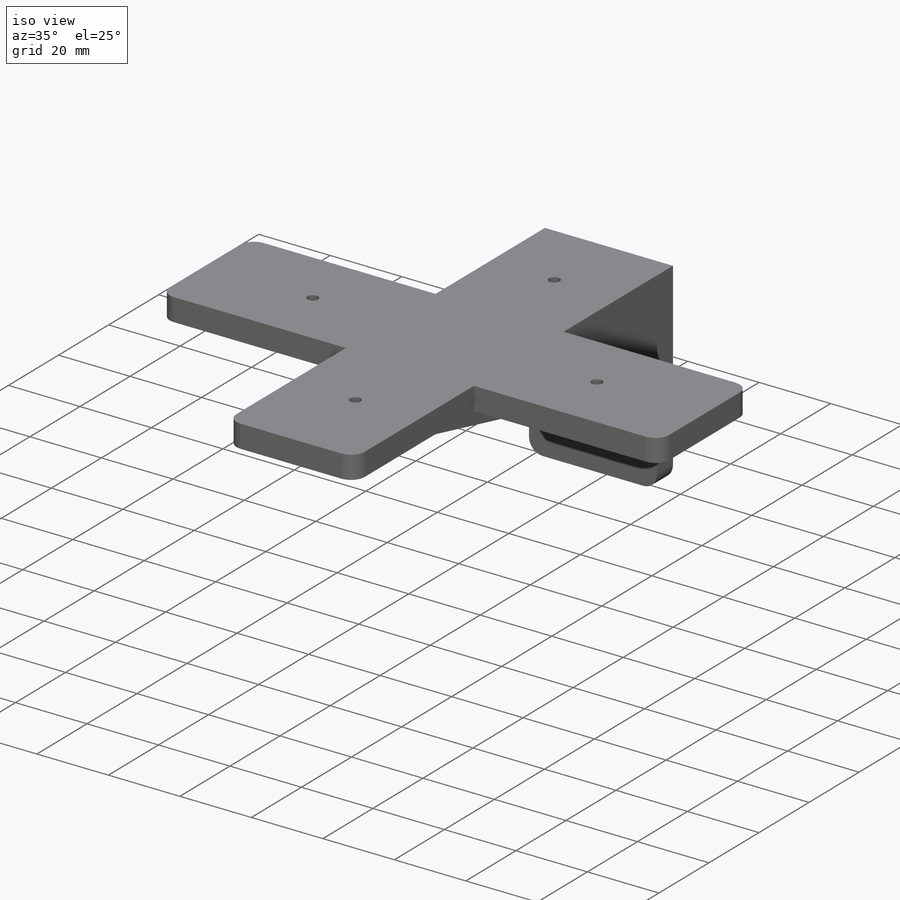
[diagram: iso view]
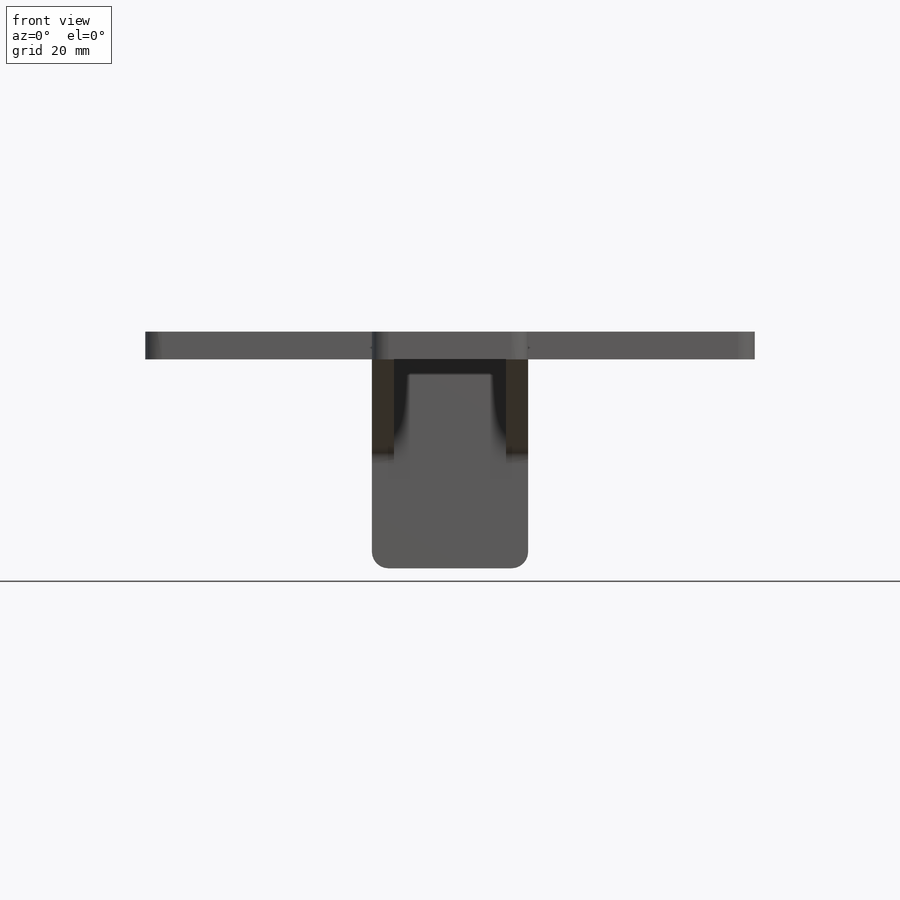
[diagram: front view]
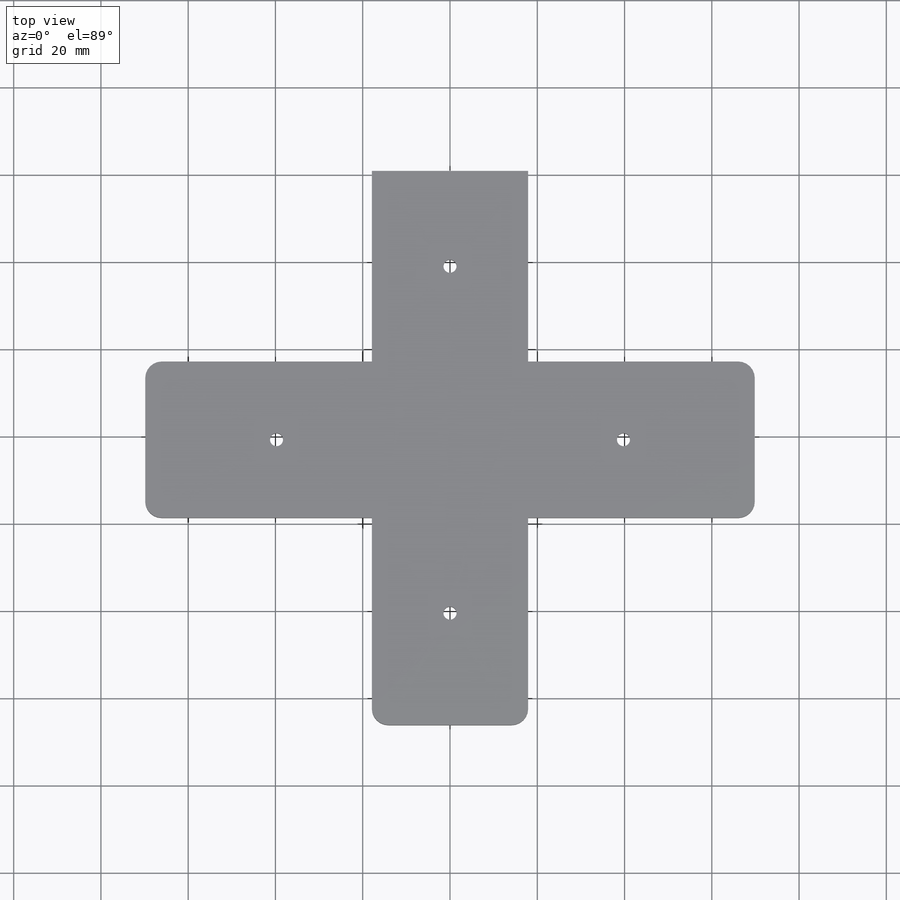
[diagram: top view]
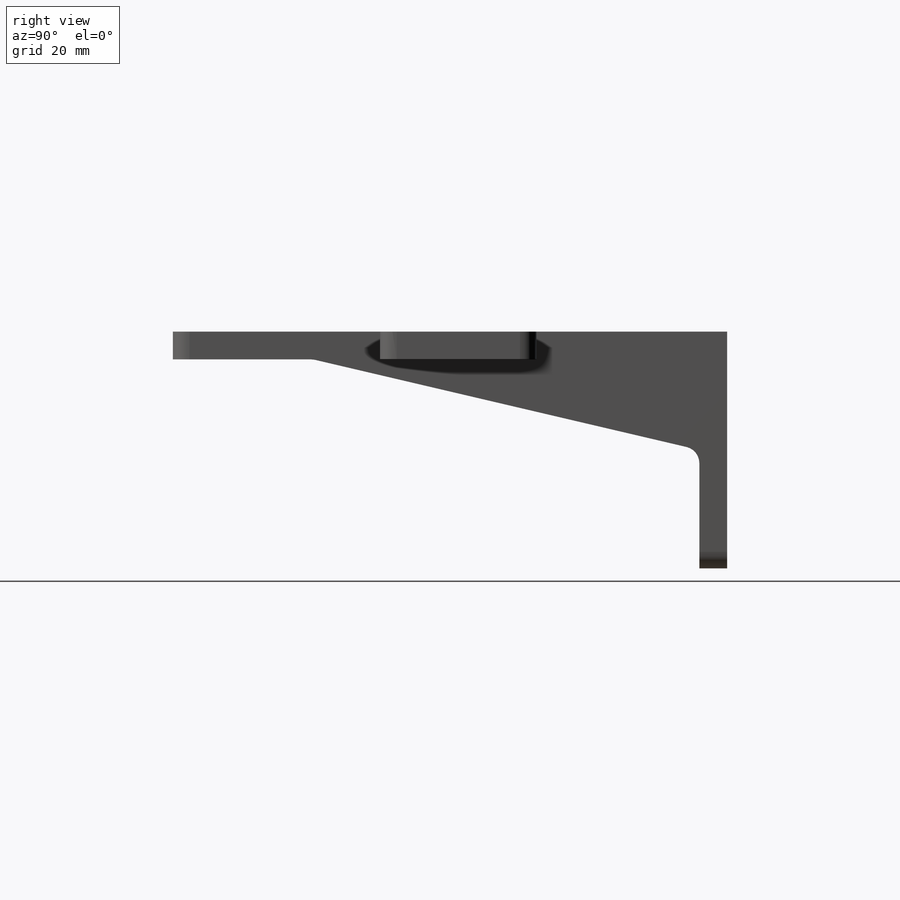
[diagram: right view]
SOLIDWORKS PART (.sldprt)
format: sldprt  version: not decoded by parser v0  size: 257,024 bytes
history: native  units: mm
features: sketch x6, extrude x4, cut_extrude x2, material x1, plane x1, mirror x1, fillet x1 (+12 scaffold rows collapsed)
feature tree (28):
  scaffold x12  (default folders/planes/origin — collapsed)
  material  "Material <not specified>"
  sketch  "Sketch1"  dims[D1=35.8267mm D2=54.2417mm]
  extrude  "Boss-Extrude1"  Depth=6.35mm
  sketch  "Sketch2"  dims[D1=127.0mm D2=35.8267mm D3=~83.68665mm]
  extrude  "Boss-Extrude2"  Depth=6.35mm
  sketch  "Sketch4"
  plane  "Plane1"  Offset=17.91335mm
  extrude  "Boss-Extrude3"  Depth=5.08mm
  mirror  "Mirror1"
  fillet  "Fillet1"  Radius=3.81mm
  sketch  "Sketch5"  dims[D4=2.9972mm D1=14.732mm D2=19.812mm D3=~8.00735mm D5=4.0]
  cut_extrude  "Cut-Extrude1"  Depth=6.35mm
  sketch  "Sketch6"  dims[D3=3.81mm D1=35.8267mm D2=139.7mm]
  extrude  "Boss-Extrude4"  Depth=6.35mm
  sketch  "Sketch7"  dims[D1=2.9972mm D2=4.0]
  cut_extrude  "Cut-Extrude2"  Depth=6.35mm
decode coverage: 12 of 14 modeling features carry decoded parameters
note: ~ marks probable driven/reference dimensions
note: suppression state not decoded; provenance and decode notes live in map.json
